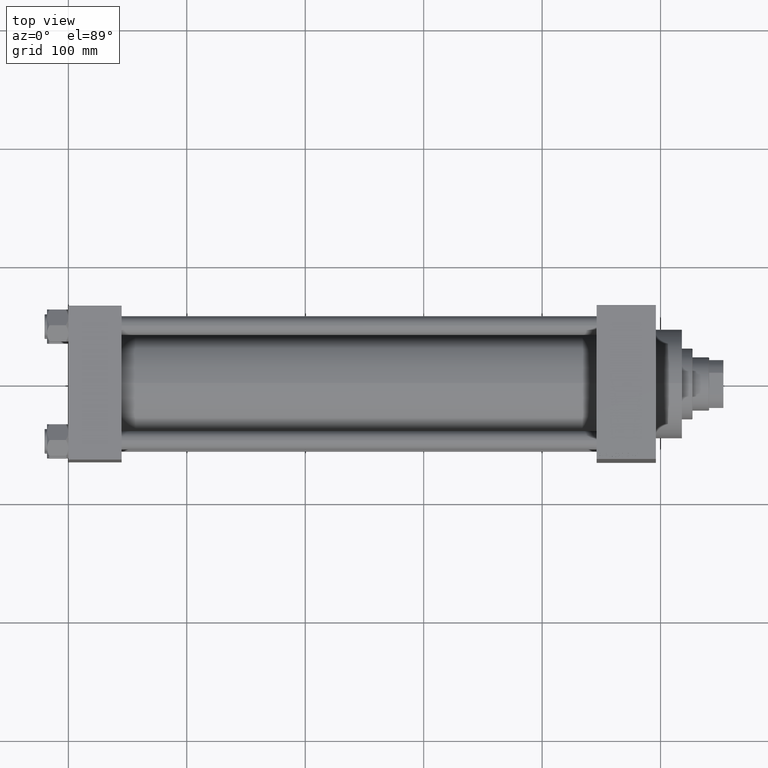
[diagram: clean part render]
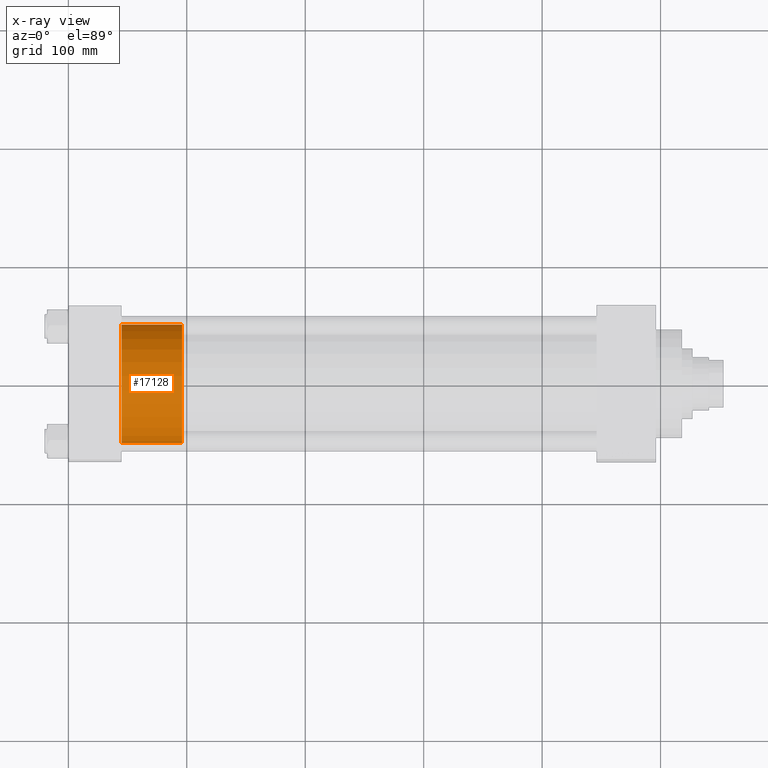
[diagram: x-ray — body ghosted, one internal face saturated and labeled with its STEP entity id]
A machine part, top view, then the same camera in x-ray: the body is ghosted and one INTERNAL B-rep face — a face not visible from any outside direction — is saturated and labeled: STEP entity #17128.
In plain terms, the highlighted cylindrical surface (partial cylindrical patch) has radius 50 mm, axis along (-1, 0, 0).
Its self-contained STEP definition (entity closure, byte-faithful):
#1 = VERTEX_POINT ( 'NONE', #3028 ) ;
#283 = CARTESIAN_POINT ( 'NONE',  ( 50.00000000000000000, 6.123233995736766085E-15, 51.00000000000000000 ) ) ;
#300 = DIRECTION ( 'NONE',  ( -0.000000000000000000, -0.000000000000000000, -1.000000000000000000 ) ) ;
#1200 = CARTESIAN_POINT ( 'NONE',  ( -50.00000000000000000, 0.000000000000000000, 0.000000000000000000 ) ) ;
#3028 = CARTESIAN_POINT ( 'NONE',  ( 50.00000000000000000, 6.123233995736766085E-15, 0.000000000000000000 ) ) ;
#4776 = DIRECTION ( 'NONE',  ( -0.000000000000000000, -0.000000000000000000, -1.000000000000000000 ) ) ;
#5834 = CYLINDRICAL_SURFACE ( 'NONE', #38656, 50.00000000000000000 ) ;
#8011 = CARTESIAN_POINT ( 'NONE',  ( 50.00000000000000000, 6.123233995736766085E-15, 51.00000000000000000 ) ) ;
#8779 = ORIENTED_EDGE ( 'NONE', *, *, #30304, .T. ) ;
#11131 = DIRECTION ( 'NONE',  ( -1.000000000000000000, 0.000000000000000000, 0.000000000000000000 ) ) ;
#12360 = ORIENTED_EDGE ( 'NONE', *, *, #15237, .T. ) ;
#12473 = VERTEX_POINT ( 'NONE', #283 ) ;
#15237 = EDGE_CURVE ( 'NONE', #15341, #46518, #29570, .T. ) ;
#15341 = VERTEX_POINT ( 'NONE', #24699 ) ;
#17128 = ADVANCED_FACE ( 'NONE', ( #38864 ), #5834, .T. ) ;
#19132 = VECTOR ( 'NONE', #300, 1000.000000000000000 ) ;
#22968 = ORIENTED_EDGE ( 'NONE', *, *, #45702, .F. ) ;
#24699 = CARTESIAN_POINT ( 'NONE',  ( -50.00000000000000000, 0.000000000000000000, 51.00000000000000000 ) ) ;
#27521 = ORIENTED_EDGE ( 'NONE', *, *, #44912, .F. ) ;
#29498 = CARTESIAN_POINT ( 'NONE',  ( 0.000000000000000000, 0.000000000000000000, 0.000000000000000000 ) ) ;
#29570 = LINE ( 'NONE', #33900, #35489 ) ;
#29743 = DIRECTION ( 'NONE',  ( 0.000000000000000000, 0.000000000000000000, 1.000000000000000000 ) ) ;
#30304 = EDGE_CURVE ( 'NONE', #46518, #1, #38960, .T. ) ;
#30410 = LINE ( 'NONE', #8011, #19132 ) ;
#30998 = CARTESIAN_POINT ( 'NONE',  ( 0.000000000000000000, 0.000000000000000000, 51.00000000000000000 ) ) ;
#33900 = CARTESIAN_POINT ( 'NONE',  ( -50.00000000000000000, 0.000000000000000000, 51.00000000000000000 ) ) ;
#34525 = CIRCLE ( 'NONE', #37646, 50.00000000000000000 ) ;
#34883 = EDGE_LOOP ( 'NONE', ( #27521, #22968, #12360, #8779 ) ) ;
#35247 = CARTESIAN_POINT ( 'NONE',  ( 0.000000000000000000, 0.000000000000000000, 51.00000000000000000 ) ) ;
#35489 = VECTOR ( 'NONE', #36815, 1000.000000000000000 ) ;
#36815 = DIRECTION ( 'NONE',  ( -0.000000000000000000, -0.000000000000000000, -1.000000000000000000 ) ) ;
#37646 = AXIS2_PLACEMENT_3D ( 'NONE', #30998, #38475, #41385 ) ;
#38475 = DIRECTION ( 'NONE',  ( 0.000000000000000000, 0.000000000000000000, 1.000000000000000000 ) ) ;
#38656 = AXIS2_PLACEMENT_3D ( 'NONE', #35247, #4776, #11131 ) ;
#38864 = FACE_OUTER_BOUND ( 'NONE', #34883, .T. ) ;
#38960 = CIRCLE ( 'NONE', #45132, 50.00000000000000000 ) ;
#41385 = DIRECTION ( 'NONE',  ( 1.000000000000000000, 0.000000000000000000, 0.000000000000000000 ) ) ;
#44912 = EDGE_CURVE ( 'NONE', #12473, #1, #30410, .T. ) ;
#45132 = AXIS2_PLACEMENT_3D ( 'NONE', #29498, #29743, #47593 ) ;
#45702 = EDGE_CURVE ( 'NONE', #15341, #12473, #34525, .T. ) ;
#46518 = VERTEX_POINT ( 'NONE', #1200 ) ;
#47593 = DIRECTION ( 'NONE',  ( 1.000000000000000000, 0.000000000000000000, 0.000000000000000000 ) ) ;